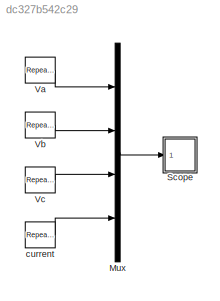
MODEL slx_dc327b542c29
KIND model
CONFIG AbsTol = auto
CONFIG EnableMultiTasking = off
CONFIG FixedStep = Ts
CONFIG InitFcn = M = readmatrix('MPC_step3_Steady60_300V_THD_tek00028.csv');\nt = M(16:end,1);\nVa = M(16:end,2);\nVb = M(16:end,4);\nVc = M(16:end,3);\ncurrent = M(16:end,5);\nTs = M(3,2);
CONFIG MaxStep = auto
CONFIG MinStep = auto
CONFIG RelTol = 1e-3
CONFIG SampleTimeConstraint = Unconstrained
CONFIG Solver = FixedStepAuto
CONFIG SolverName = FixedStepAuto
CONFIG StartTime = 0.0
CONFIG StopTime = 0.06
BLOCK [Mux] Mux
  DisplayOption = bar
  Ports = [4, 1]
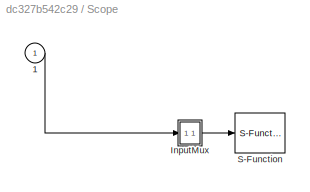
BLOCK [SubSystem] Scope
  CopyFcn = plecs('sl', 303);
  DeleteFcn = plecs('sl', 305);
  DestroyFcn = plecs('sl', 307);
  ErrorFcn = plerrorfcn
  InitFcn = plecs('sl', 314);
  LoadFcn = plecs('sl', 300);
  NameChangeFcn = plecs('sl', 310);
  OpenFcn = plecs('sl', 302);
  Ports = [1]
  PreSaveFcn = plecs('sl', 311);
  RequestExecContextInheritance = off
  StartFcn = plecs('sl', 308);
  StopFcn = plecs('sl', 309);
  UndoDeleteFcn = plecs('sl', 306);
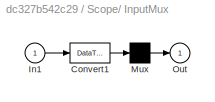
BLOCK [SubSystem] Scope/ InputMux 
  Ports = [1, 1]
  RequestExecContextInheritance = off
BLOCK [DataTypeConversion] Scope/ InputMux /Convert1
BLOCK [Inport] Scope/ InputMux /In1
  IconDisplay = Port number
BLOCK [Mux] Scope/ InputMux /Mux
  Inputs = 1
  Ports = [1, 1]
BLOCK [Outport] Scope/ InputMux /Out
  IconDisplay = Port number
BLOCK [S-Function] Scope/ S-Function 
  EnableBusSupport = off
  FunctionName = plecs
  Ports = [1]
  SFcnIsStateOwnerBlock = off
  SFunctionDeploymentMode = off
BLOCK [Inport] Scope/1
  IconDisplay = Port number
BLOCK [Reference] Va   REF=simulink/Sources/Repeating
Sequence
  Ports = [0, 1]
  SourceBlock = simulink/Sources/Repeating\nSequence
  SourceProductBaseCode = SL
  SourceProductName = Simulink
  SourceType = Repeating table
BLOCK [Reference] Vb  REF=simulink/Sources/Repeating
Sequence
  Ports = [0, 1]
  SourceBlock = simulink/Sources/Repeating\nSequence
  SourceProductBaseCode = SL
  SourceProductName = Simulink
  SourceType = Repeating table
BLOCK [Reference] Vc  REF=simulink/Sources/Repeating
Sequence
  Ports = [0, 1]
  SourceBlock = simulink/Sources/Repeating\nSequence
  SourceProductBaseCode = SL
  SourceProductName = Simulink
  SourceType = Repeating table
BLOCK [Reference] current   REF=simulink/Sources/Repeating
Sequence
  Ports = [0, 1]
  SourceBlock = simulink/Sources/Repeating\nSequence
  SourceProductBaseCode = SL
  SourceProductName = Simulink
  SourceType = Repeating table
LINE Mux:1 -> Scope:1
LINE Scope/ InputMux /Convert1:1 -> Scope/ InputMux /Mux:1
LINE Scope/ InputMux /In1:1 -> Scope/ InputMux /Convert1:1
LINE Scope/ InputMux /Mux:1 -> Scope/ InputMux /Out:1
LINE Scope/ InputMux :1 -> Scope/ S-Function :1
LINE Scope/1:1 -> Scope/ InputMux :1
LINE Va :1 -> Mux:1
LINE Vb:1 -> Mux:2
LINE Vc:1 -> Mux:3
LINE current :1 -> Mux:4
